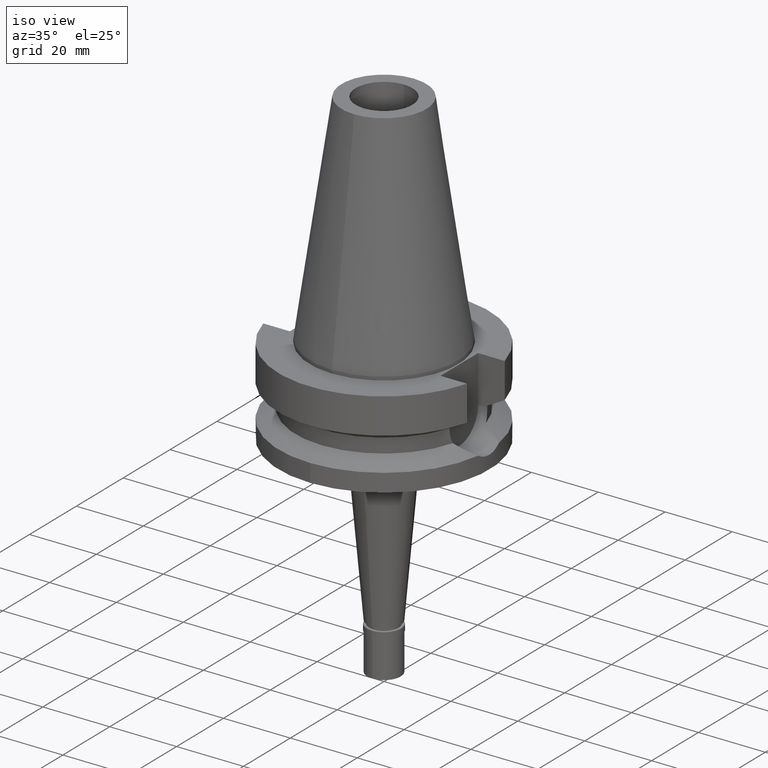
[diagram: clean part render]
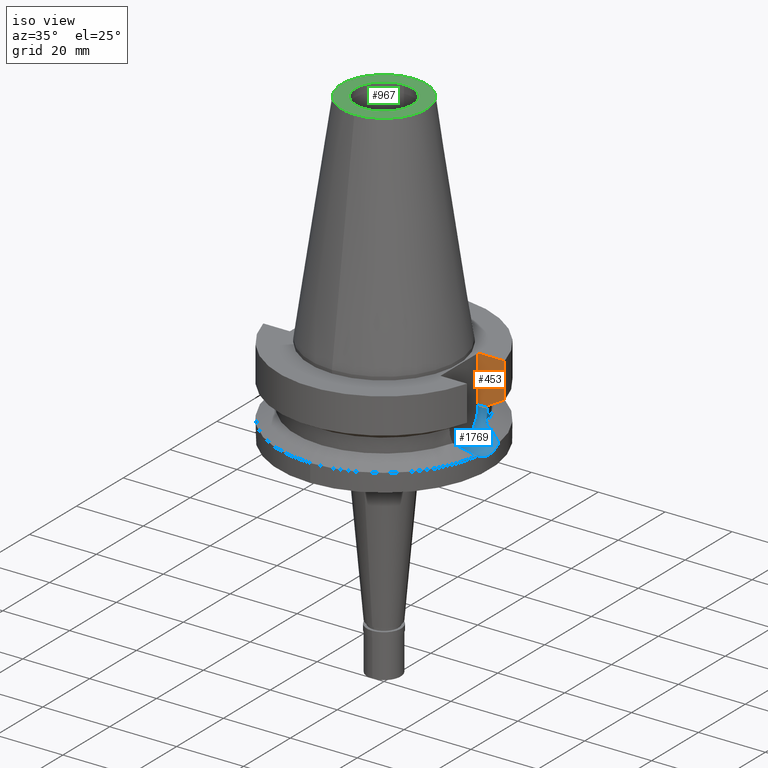
[diagram: same view with three faces highlighted in distinct colors, each labeled with its STEP entity id]
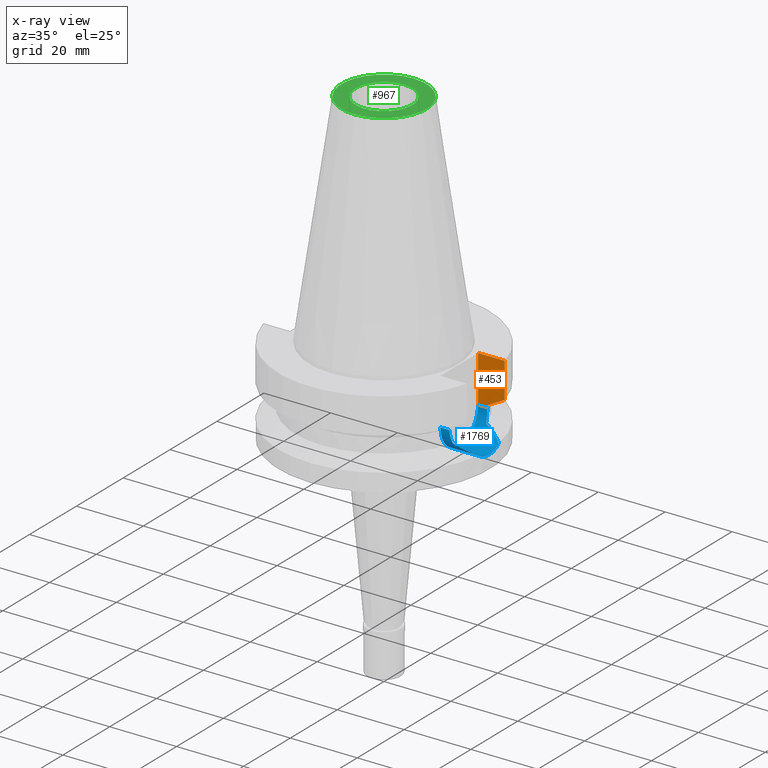
[diagram: x-ray of the same camera — body ghosted, the three highlighted faces saturated]
A machine part, iso view with three faces highlighted in distinct colors.
The next image is the same camera in x-ray (body ghosted, the three faces saturated) — at least one of them is partly hidden behind the body in this view.
Their STEP definitions:

[orange] entity #453 — the highlighted planar face has unit normal (0, 1, 0).
#15 = DIRECTION ( 'NONE',  ( 1.000000000000000000, 0.0000000000000000000, 0.0000000000000000000 ) ) ;
#109 = DIRECTION ( 'NONE',  ( 1.000000000000000000, -3.506251283225999947E-14, 0.0000000000000000000 ) ) ;
#113 = LINE ( 'NONE', #2695, #1739 ) ;
#171 = DIRECTION ( 'NONE',  ( 0.0000000000000000000, 0.0000000000000000000, -1.000000000000000000 ) ) ;
#190 = PLANE ( 'NONE',  #306 ) ;
#276 = CARTESIAN_POINT ( 'NONE',  ( 25.24772266958000344, 8.050000000000000711, -14.94999999999999929 ) ) ;
#306 = AXIS2_PLACEMENT_3D ( 'NONE', #2327, #1097, #15 ) ;
#356 = EDGE_CURVE ( 'NONE', #1653, #1566, #113, .T. ) ;
#453 = ADVANCED_FACE ( 'NONE', ( #1127 ), #190, .F. ) ;
#519 = VECTOR ( 'NONE', #171, 1000.000000000000000 ) ;
#551 = VERTEX_POINT ( 'NONE', #1804 ) ;
#552 = EDGE_CURVE ( 'NONE', #2700, #1653, #932, .T. ) ;
#781 = LINE ( 'NONE', #1440, #986 ) ;
#860 = CARTESIAN_POINT ( 'NONE',  ( 30.45402291391000205, 8.049999276944999949, -11.56551216506999857 ) ) ;
#932 = LINE ( 'NONE', #2753, #1122 ) ;
#986 = VECTOR ( 'NONE', #2408, 1000.000000000000114 ) ;
#1057 = DIRECTION ( 'NONE',  ( 2.938014706397083811E-06, -9.214686618963258152E-06, 0.9999999999532287465 ) ) ;
#1062 = ORIENTED_EDGE ( 'NONE', *, *, #2932, .F. ) ;
#1097 = DIRECTION ( 'NONE',  ( -0.0000000000000000000, 1.000000000000000000, 0.0000000000000000000 ) ) ;
#1122 = VECTOR ( 'NONE', #1577, 1000.000000000000000 ) ;
#1127 = FACE_OUTER_BOUND ( 'NONE', #1282, .T. ) ;
#1195 = EDGE_CURVE ( 'NONE', #551, #1566, #2629, .T. ) ;
#1209 = CARTESIAN_POINT ( 'NONE',  ( 25.24772413184999920, 8.049995413776999342, -14.45229204333999995 ) ) ;
#1222 = ORIENTED_EDGE ( 'NONE', *, *, #1195, .F. ) ;
#1232 = LINE ( 'NONE', #2631, #1383 ) ;
#1282 = EDGE_LOOP ( 'NONE', ( #1222, #1790, #1062, #2533, #1479, #2437 ) ) ;
#1329 = CARTESIAN_POINT ( 'NONE',  ( 25.24772413184999920, 8.049995413776999342, -14.45229204333999995 ) ) ;
#1383 = VECTOR ( 'NONE', #109, 1000.000000000000000 ) ;
#1440 = CARTESIAN_POINT ( 'NONE',  ( 30.45402291391000205, 8.049999276944999949, -11.56551216506999857 ) ) ;
#1479 = ORIENTED_EDGE ( 'NONE', *, *, #552, .T. ) ;
#1526 = CARTESIAN_POINT ( 'NONE',  ( 22.50000000000000000, 8.050000000000000711, -1.000000000000000000 ) ) ;
#1537 = EDGE_CURVE ( 'NONE', #551, #2564, #781, .T. ) ;
#1547 = CARTESIAN_POINT ( 'NONE',  ( 28.57292327179205316, 8.049998554832107800, -12.61549606603391105 ) ) ;
#1566 = VERTEX_POINT ( 'NONE', #1209 ) ;
#1577 = DIRECTION ( 'NONE',  ( 1.000000000000000000, -1.551559937893000172E-14, 0.0000000000000000000 ) ) ;
#1609 = CARTESIAN_POINT ( 'NONE',  ( 22.50000000000000000, 8.050000000000000711, -14.94999999999999929 ) ) ;
#1653 = VERTEX_POINT ( 'NONE', #276 ) ;
#1691 = CARTESIAN_POINT ( 'NONE',  ( 22.50000000000000000, 8.050000000000000711, -1.000000000000000000 ) ) ;
#1739 = VECTOR ( 'NONE', #1057, 1000.000000000000114 ) ;
#1790 = ORIENTED_EDGE ( 'NONE', *, *, #1537, .T. ) ;
#1802 = LINE ( 'NONE', #1526, #519 ) ;
#1804 = CARTESIAN_POINT ( 'NONE',  ( 30.45402291391000205, 8.049999276944999949, -11.56551216506999857 ) ) ;
#2327 = CARTESIAN_POINT ( 'NONE',  ( 22.50000000000000000, 8.050000000000000711, -14.94999999999999929 ) ) ;
#2378 = EDGE_CURVE ( 'NONE', #2820, #2700, #1802, .T. ) ;
#2408 = DIRECTION ( 'NONE',  ( -1.808965443440990702E-08, 6.843536210293961624E-08, 0.9999999999999974465 ) ) ;
#2437 = ORIENTED_EDGE ( 'NONE', *, *, #356, .T. ) ;
#2501 = CARTESIAN_POINT ( 'NONE',  ( 26.83754614074041456, 8.049990817397580045, -13.57774889237704130 ) ) ;
#2533 = ORIENTED_EDGE ( 'NONE', *, *, #2378, .T. ) ;
#2564 = VERTEX_POINT ( 'NONE', #2807 ) ;
#2629 = B_SPLINE_CURVE_WITH_KNOTS ( 'NONE', 3,
 ( #860, #1547, #2501, #1329 ),
 .UNSPECIFIED., .F., .F.,
 ( 4, 4 ),
 ( 0.0000000000000000000, 1.000000000000000000 ),
 .UNSPECIFIED. ) ;
#2631 = CARTESIAN_POINT ( 'NONE',  ( 22.50000000000000000, 8.050000000000000711, -1.000000000000000000 ) ) ;
#2695 = CARTESIAN_POINT ( 'NONE',  ( 25.24772266958000344, 8.050000000000000711, -14.94999999999999929 ) ) ;
#2700 = VERTEX_POINT ( 'NONE', #1609 ) ;
#2753 = CARTESIAN_POINT ( 'NONE',  ( 22.50000000000000000, 8.050000000000000711, -14.94999999999999929 ) ) ;
#2807 = CARTESIAN_POINT ( 'NONE',  ( 30.45402272279000044, 8.050000000000000711, -1.000000000000000000 ) ) ;
#2820 = VERTEX_POINT ( 'NONE', #1691 ) ;
#2932 = EDGE_CURVE ( 'NONE', #2820, #2564, #1232, .T. ) ;

[blue] entity #1769 — the highlighted cylindrical surface (edge-blend (fillet) strip) has radius 8.05 mm, axis along (1, 0, 0).
#1 = CARTESIAN_POINT ( 'NONE',  ( 31.43708070623769402, 1.991764995276301464, -22.75084497589715227 ) ) ;
#18 = CARTESIAN_POINT ( 'NONE',  ( 31.41961713560081293, 2.247512791031588630, -22.67996187727418445 ) ) ;
#32 = CARTESIAN_POINT ( 'NONE',  ( 31.41697434343423367, 2.283991918620003059, -22.66919955626233829 ) ) ;
#35 = CARTESIAN_POINT ( 'NONE',  ( 25.25396284446427231, -8.030907492774099765, -15.59360398733923248 ) ) ;
#69 = VERTEX_POINT ( 'NONE', #1663 ) ;
#154 = CARTESIAN_POINT ( 'NONE',  ( 31.40782758523585372, -2.406601728313475075, -22.63190292606204324 ) ) ;
#168 = CARTESIAN_POINT ( 'NONE',  ( 28.37499727210918721, -6.100946831235466661, -20.20441925685868512 ) ) ;
#185 = CARTESIAN_POINT ( 'NONE',  ( 30.86092685240122080, -4.726847431179353798, -21.47256585195634671 ) ) ;
#242 = EDGE_CURVE ( 'NONE', #69, #1545, #496, .T. ) ;
#272 = DIRECTION ( 'NONE',  ( -1.000000000000000000, -1.551559937893000172E-14, 0.0000000000000000000 ) ) ;
#276 = CARTESIAN_POINT ( 'NONE',  ( 25.24772266958000344, 8.050000000000000711, -14.94999999999999929 ) ) ;
#313 = CARTESIAN_POINT ( 'NONE',  ( 25.32840589093493122, 7.792665650289850809, -16.96921537928767165 ) ) ;
#320 = CARTESIAN_POINT ( 'NONE',  ( 31.17899877608999759, 4.485536235554000051, -21.63449434733000132 ) ) ;
#328 = CARTESIAN_POINT ( 'NONE',  ( 25.53175183775000079, 7.097862220092999941, -18.74774300138999905 ) ) ;
#344 = ORIENTED_EDGE ( 'NONE', *, *, #2080, .F. ) ;
#357 = CARTESIAN_POINT ( 'NONE',  ( 25.33288843118665312, 7.778112047386424699, -17.02510900864709598 ) ) ;
#363 = CARTESIAN_POINT ( 'NONE',  ( 25.53175183775000079, 7.097862220092999941, -18.74774300138999905 ) ) ;
#365 = VERTEX_POINT ( 'NONE', #617 ) ;
#368 = CARTESIAN_POINT ( 'NONE',  ( 31.50000030214000901, -0.7652149793535831801, -23.00000000000001066 ) ) ;
#371 = CYLINDRICAL_SURFACE ( 'NONE', #1799, 8.050000000000000711 ) ;
#411 = CARTESIAN_POINT ( 'NONE',  ( 31.23205536474370447, -4.116739457217387432, -21.88197025603023604 ) ) ;
#422 = CARTESIAN_POINT ( 'NONE',  ( 27.36021350787058992, -6.509965234031566794, -19.68537179173337748 ) ) ;
#468 = CARTESIAN_POINT ( 'NONE',  ( 31.28511246932954393, 3.747939092731539024, -22.12944857116227482 ) ) ;
#480 = CARTESIAN_POINT ( 'NONE',  ( 31.47113396423499410, 1.356627086445900465, -22.88731413899968103 ) ) ;
#492 = B_SPLINE_CURVE_WITH_KNOTS ( 'NONE', 3,
 ( #2775, #920, #2346, #480, #1641, #2056, #1, #696, #18, #32, #1595, #1179, #2552, #468, #2591 ),
 .UNSPECIFIED., .F., .F.,
 ( 4, 2, 2, 1, 1, 1, 2, 2, 4 ),
 ( 0.0000000000000000000, 0.2499999999999987232, 0.3749999999999980571, 0.4374999999999976685, 0.4687499999999972800, 0.4843749999999970579, 0.4921874999999972800, 0.4999999999999974465, 1.000000000000000000 ),
 .UNSPECIFIED. ) ;
#496 = B_SPLINE_CURVE_WITH_KNOTS ( 'NONE', 3,
 ( #1783, #185, #1753, #1092, #2702, #1305, #2230, #2017, #168, #864, #2947, #879, #2733, #2504, #422, #2148, #537, #2121 ),
 .UNSPECIFIED., .F., .F.,
 ( 4, 2, 2, 2, 2, 1, 1, 2, 2, 4 ),
 ( 0.0000000000000000000, 0.2499999999999968359, 0.3749999999999952260, 0.4999999999999936717, 0.6249999999999921174, 0.6874999999999918954, 0.7187499999999912292, 0.7343749999999908962, 0.7499999999999905631, 1.000000000000000000 ),
 .UNSPECIFIED. ) ;
#515 = CARTESIAN_POINT ( 'NONE',  ( 25.31648647172267630, -7.831300037042746354, -16.81378020971410336 ) ) ;
#537 = CARTESIAN_POINT ( 'NONE',  ( 26.19471785708979894, -6.915624221760626966, -19.08834008838357477 ) ) ;
#552 = EDGE_CURVE ( 'NONE', #2700, #1653, #932, .T. ) ;
#553 = CARTESIAN_POINT ( 'NONE',  ( 25.34384339545047737, 7.742469616379023201, -17.15619314850085431 ) ) ;
#582 = CARTESIAN_POINT ( 'NONE',  ( 31.41024033735767418, -2.374799497788442348, -22.64174557504526319 ) ) ;
#596 = CARTESIAN_POINT ( 'NONE',  ( 26.07037693278902424, 6.949803411181306956, -19.02446025838356647 ) ) ;
#614 = DIRECTION ( 'NONE',  ( 0.0000000000000000000, 0.0000000000000000000, -1.000000000000000000 ) ) ;
#617 = CARTESIAN_POINT ( 'NONE',  ( 31.17899877608999759, 4.485536235554000051, -21.63449434733000132 ) ) ;
#631 = CARTESIAN_POINT ( 'NONE',  ( 31.50000030214000191, 8.342955494189999248E-14, -23.00000138097999880 ) ) ;
#684 = CARTESIAN_POINT ( 'NONE',  ( 25.53175183775000079, 7.097862220092999941, -18.74774300138999905 ) ) ;
#686 = EDGE_LOOP ( 'NONE', ( #2147, #1511, #2141, #2827, #344, #1845, #2297, #2563, #1020 ) ) ;
#696 = CARTESIAN_POINT ( 'NONE',  ( 31.42563565429491135, 2.162334764995339498, -22.70443684360698811 ) ) ;
#715 = VECTOR ( 'NONE', #272, 1000.000000000000000 ) ;
#716 = CARTESIAN_POINT ( 'NONE',  ( 25.31950905643225269, -7.821515286679913359, -16.85442525727320273 ) ) ;
#757 = CARTESIAN_POINT ( 'NONE',  ( 27.52907743079975589, 6.446503288826595401, -19.77132000358237462 ) ) ;
#786 = CARTESIAN_POINT ( 'NONE',  ( 27.50606393660781990, 6.455279954192641334, -19.75956144972829520 ) ) ;
#797 = CARTESIAN_POINT ( 'NONE',  ( 25.37569567372544910, 7.637836187999782922, -17.49781209657168191 ) ) ;
#805 = CARTESIAN_POINT ( 'NONE',  ( 31.38993428958174903, -2.631303512542792156, -22.55875788733084875 ) ) ;
#853 = CARTESIAN_POINT ( 'NONE',  ( 22.50000000000000000, -8.050000000000000711, -14.94999999999999929 ) ) ;
#864 = CARTESIAN_POINT ( 'NONE',  ( 27.99471042802032983, -6.261471513020793189, -20.01000085046658228 ) ) ;
#870 = CARTESIAN_POINT ( 'NONE',  ( 31.35450628997280731, -3.025525277933811985, -22.41217090960126512 ) ) ;
#879 = CARTESIAN_POINT ( 'NONE',  ( 27.56606101210972781, -6.432230505110647201, -19.79073109492793492 ) ) ;
#882 = CARTESIAN_POINT ( 'NONE',  ( 22.50000000000000000, 0.0000000000000000000, -14.94999999999999929 ) ) ;
#892 = B_SPLINE_CURVE_WITH_KNOTS ( 'NONE', 3,
 ( #2726, #411, #1528, #1055, #870, #2876, #805, #1711, #154, #582, #1990, #1499, #2920, #368, #631 ),
 .UNSPECIFIED., .F., .F.,
 ( 4, 2, 2, 1, 1, 1, 2, 2, 4 ),
 ( 0.0000000000000000000, 0.2499999999999926725, 0.3749999999999884537, 0.4374999999999862887, 0.4687499999999850675, 0.4843749999999845124, 0.4921874999999845124, 0.4999999999999845124, 1.000000000000000000 ),
 .UNSPECIFIED. ) ;
#909 = VERTEX_POINT ( 'NONE', #684 ) ;
#920 = CARTESIAN_POINT ( 'NONE',  ( 31.50000030214000901, 0.3826056554101830987, -23.00000000000001066 ) ) ;
#932 = LINE ( 'NONE', #2753, #1122 ) ;
#935 = CARTESIAN_POINT ( 'NONE',  ( 25.24772266958000344, -8.050000000000000711, -14.94999999999999929 ) ) ;
#950 = CARTESIAN_POINT ( 'NONE',  ( 31.50000030214000191, 8.342955494189999248E-14, -23.00000138097999880 ) ) ;
#963 = CARTESIAN_POINT ( 'NONE',  ( 25.31202572170774800, -7.845729406580115750, -16.75279821057748464 ) ) ;
#987 = CARTESIAN_POINT ( 'NONE',  ( 22.50000000000000000, 0.0000000000000000000, -14.94999999999999929 ) ) ;
#1014 = DIRECTION ( 'NONE',  ( 0.0000000000000000000, 0.0000000000000000000, -1.000000000000000000 ) ) ;
#1015 = CARTESIAN_POINT ( 'NONE',  ( 25.53175183775000079, -7.097862220092999941, -18.74774300138999905 ) ) ;
#1020 = ORIENTED_EDGE ( 'NONE', *, *, #2097, .T. ) ;
#1028 = CARTESIAN_POINT ( 'NONE',  ( 25.24772266958000344, 8.049999999999997158, -15.58981081119148193 ) ) ;
#1038 = CIRCLE ( 'NONE', #2701, 8.050000000000000711 ) ;
#1055 = CARTESIAN_POINT ( 'NONE',  ( 31.33672057677264178, -3.204251252587263288, -22.33748834319396792 ) ) ;
#1065 = EDGE_CURVE ( 'NONE', #69, #1414, #892, .T. ) ;
#1067 = DIRECTION ( 'NONE',  ( -1.000000000000000000, 0.0000000000000000000, 0.0000000000000000000 ) ) ;
#1092 = CARTESIAN_POINT ( 'NONE',  ( 29.92469731240471020, -5.317462073779302578, -20.99542885212645515 ) ) ;
#1122 = VECTOR ( 'NONE', #1577, 1000.000000000000000 ) ;
#1140 = CARTESIAN_POINT ( 'NONE',  ( 25.36814761471070767, -7.663830712965410186, -17.48803584493431984 ) ) ;
#1165 = B_SPLINE_CURVE_WITH_KNOTS ( 'NONE', 3,
 ( #328, #1934, #2177, #2865, #797, #1687, #553, #357, #313, #2394, #1504, #1700, #1028, #2654 ),
 .UNSPECIFIED., .F., .F.,
 ( 4, 2, 2, 1, 1, 2, 2, 4 ),
 ( 0.0000000000000000000, 0.2500000000000011657, 0.3750000000000028311, 0.4375000000000037748, 0.4687500000000027756, 0.4843750000000024425, 0.5000000000000019984, 1.000000000000000000 ),
 .UNSPECIFIED. ) ;
#1179 = CARTESIAN_POINT ( 'NONE',  ( 31.41418495480496276, 2.322053851931152213, -22.65783286939395325 ) ) ;
#1199 = CARTESIAN_POINT ( 'NONE',  ( 25.53175183775000079, -7.097862220092999941, -18.74774300138999905 ) ) ;
#1203 = CARTESIAN_POINT ( 'NONE',  ( 27.72909069492666845, 6.368935428460407167, -19.87352897229699167 ) ) ;
#1258 = CARTESIAN_POINT ( 'NONE',  ( 25.24772266958000344, -8.050000000000000711, -14.94999999999999929 ) ) ;
#1276 = CARTESIAN_POINT ( 'NONE',  ( 26.57788799908902178, 6.789703925417603259, -19.28477394101565423 ) ) ;
#1305 = CARTESIAN_POINT ( 'NONE',  ( 29.29787638095617552, -5.660589042173123531, -20.67570061258619063 ) ) ;
#1384 = CARTESIAN_POINT ( 'NONE',  ( 25.32118155423751560, -7.816096717212906775, -16.87652453452377443 ) ) ;
#1392 = LINE ( 'NONE', #935, #715 ) ;
#1410 = CARTESIAN_POINT ( 'NONE',  ( 25.27268336911707891, -7.971811480182248388, -16.08115959834941222 ) ) ;
#1414 = VERTEX_POINT ( 'NONE', #950 ) ;
#1424 = EDGE_CURVE ( 'NONE', #1782, #1545, #2525, .T. ) ;
#1499 = CARTESIAN_POINT ( 'NONE',  ( 31.41250754197807993, -2.344647989658719567, -22.65099259441074508 ) ) ;
#1504 = CARTESIAN_POINT ( 'NONE',  ( 25.32415423298265722, 7.806459850231466824, -16.91522840168126152 ) ) ;
#1511 = ORIENTED_EDGE ( 'NONE', *, *, #1684, .T. ) ;
#1528 = CARTESIAN_POINT ( 'NONE',  ( 31.27811788849607666, -3.746649693726940455, -22.08610233353132912 ) ) ;
#1545 = VERTEX_POINT ( 'NONE', #1015 ) ;
#1555 = CARTESIAN_POINT ( 'NONE',  ( 27.17338429604023631, 6.578986936333137692, -19.58949578873789221 ) ) ;
#1577 = DIRECTION ( 'NONE',  ( 1.000000000000000000, -1.551559937893000172E-14, 0.0000000000000000000 ) ) ;
#1595 = CARTESIAN_POINT ( 'NONE',  ( 31.41519838709827539, 2.308305299124623122, -22.66196392106155599 ) ) ;
#1609 = CARTESIAN_POINT ( 'NONE',  ( 22.50000000000000000, 8.050000000000000711, -14.94999999999999929 ) ) ;
#1635 = CARTESIAN_POINT ( 'NONE',  ( 25.24772266958000344, -8.050000000000000711, -14.94999999999999929 ) ) ;
#1641 = CARTESIAN_POINT ( 'NONE',  ( 31.46211323363969115, 1.552195910349955632, -22.85147168905218962 ) ) ;
#1653 = VERTEX_POINT ( 'NONE', #276 ) ;
#1663 = CARTESIAN_POINT ( 'NONE',  ( 31.17899877608999759, -4.485536235554000051, -21.63449434733000132 ) ) ;
#1666 = CARTESIAN_POINT ( 'NONE',  ( 27.47040263872500887, 6.468848196884700918, -19.74133976322999473 ) ) ;
#1684 = EDGE_CURVE ( 'NONE', #909, #1653, #1165, .T. ) ;
#1687 = CARTESIAN_POINT ( 'NONE',  ( 25.35408314255054663, 7.708964442631086378, -17.26963666352914117 ) ) ;
#1700 = CARTESIAN_POINT ( 'NONE',  ( 25.27267991477270215, 7.973333693868347005, -16.24500092433180498 ) ) ;
#1711 = CARTESIAN_POINT ( 'NONE',  ( 31.40205439731330017, -2.481109188367201401, -22.60833575748784341 ) ) ;
#1718 = DIRECTION ( 'NONE',  ( 1.000000000000000000, 0.0000000000000000000, 0.0000000000000000000 ) ) ;
#1753 = CARTESIAN_POINT ( 'NONE',  ( 30.50757115698613831, -4.966401490634723359, -21.29255841623271905 ) ) ;
#1769 = ADVANCED_FACE ( 'NONE', ( #2430 ), #371, .F. ) ;
#1782 = VERTEX_POINT ( 'NONE', #1258 ) ;
#1783 = CARTESIAN_POINT ( 'NONE',  ( 31.17899877608999759, -4.485536235554000051, -21.63449434733000132 ) ) ;
#1799 = AXIS2_PLACEMENT_3D ( 'NONE', #987, #1718, #1014 ) ;
#1845 = ORIENTED_EDGE ( 'NONE', *, *, #1424, .T. ) ;
#1867 = CARTESIAN_POINT ( 'NONE',  ( 25.30212919435223995, -7.877667573970332349, -16.61042047323947202 ) ) ;
#1926 = CARTESIAN_POINT ( 'NONE',  ( 28.33598069284113663, 6.118865374169335070, -20.18378028383055067 ) ) ;
#1934 = CARTESIAN_POINT ( 'NONE',  ( 25.48480653792046624, 7.266729367422243513, -18.43213561436577308 ) ) ;
#1990 = CARTESIAN_POINT ( 'NONE',  ( 31.41183517848922335, -2.353627141601180028, -22.64825057556864252 ) ) ;
#2017 = CARTESIAN_POINT ( 'NONE',  ( 28.61715253155249883, -5.991983453913923618, -20.32814229185106214 ) ) ;
#2056 = CARTESIAN_POINT ( 'NONE',  ( 31.44587591856813802, 1.845286407608153656, -22.78628960817215088 ) ) ;
#2080 = EDGE_CURVE ( 'NONE', #1782, #2382, #1392, .T. ) ;
#2097 = EDGE_CURVE ( 'NONE', #1414, #365, #492, .T. ) ;
#2111 = CARTESIAN_POINT ( 'NONE',  ( 25.24772266958000344, -8.050000000000000711, -15.26991324108737302 ) ) ;
#2121 = CARTESIAN_POINT ( 'NONE',  ( 25.53175183775000079, -7.097862220092999941, -18.74774300138999905 ) ) ;
#2126 = CARTESIAN_POINT ( 'NONE',  ( 27.64268996898243103, 6.402877931771499220, -19.82937222061136495 ) ) ;
#2140 = CARTESIAN_POINT ( 'NONE',  ( 29.60898665998330515, 5.537310361553017479, -20.83457359421966260 ) ) ;
#2141 = ORIENTED_EDGE ( 'NONE', *, *, #552, .F. ) ;
#2147 = ORIENTED_EDGE ( 'NONE', *, *, #2948, .T. ) ;
#2148 = CARTESIAN_POINT ( 'NONE',  ( 26.79339989418530621, -6.719838285451953830, -19.39519324303487480 ) ) ;
#2177 = CARTESIAN_POINT ( 'NONE',  ( 25.44390410195637742, 7.408324269918076688, -18.11690676764972352 ) ) ;
#2185 = CARTESIAN_POINT ( 'NONE',  ( 28.07165455292683731, 6.232028418511025514, -20.04862121734959857 ) ) ;
#2230 = CARTESIAN_POINT ( 'NONE',  ( 29.07863705188619363, -5.771779660784049248, -20.56380988996443548 ) ) ;
#2235 = B_SPLINE_CURVE_WITH_KNOTS ( 'NONE', 3,
 ( #320, #2417, #2140, #1926, #2185, #1203, #2126, #2836, #757, #2858, #786, #1666, #2617, #1555, #1276, #596, #363 ),
 .UNSPECIFIED., .F., .F.,
 ( 4, 2, 2, 1, 2, 2, 1, 1, 2, 4 ),
 ( 0.0000000000000000000, 0.5000000000000337508, 0.6250000000000428546, 0.6562500000000455191, 0.6640625000000459632, 0.6679687500000455191, 0.6718750000000450751, 0.6875000000000428546, 0.7500000000000339728, 1.000000000000000000 ),
 .UNSPECIFIED. ) ;
#2297 = ORIENTED_EDGE ( 'NONE', *, *, #242, .F. ) ;
#2332 = EDGE_CURVE ( 'NONE', #2700, #2382, #1038, .T. ) ;
#2346 = CARTESIAN_POINT ( 'NONE',  ( 31.49278371766374462, 0.7711800344137828001, -22.97267739136340481 ) ) ;
#2366 = CARTESIAN_POINT ( 'NONE',  ( 25.29452398121201284, -7.902090651792915033, -16.48828405102948125 ) ) ;
#2382 = VERTEX_POINT ( 'NONE', #853 ) ;
#2394 = CARTESIAN_POINT ( 'NONE',  ( 25.32546474064105979, 7.802209548897429237, -16.93201787082077203 ) ) ;
#2417 = CARTESIAN_POINT ( 'NONE',  ( 30.47179228992344235, 5.022071622751537845, -21.27445979634407891 ) ) ;
#2430 = FACE_OUTER_BOUND ( 'NONE', #686, .T. ) ;
#2504 = CARTESIAN_POINT ( 'NONE',  ( 27.39574079807524143, -6.496701382466126162, -19.70355813172771775 ) ) ;
#2525 = B_SPLINE_CURVE_WITH_KNOTS ( 'NONE', 3,
 ( #1635, #2111, #35, #1410, #2780, #2366, #1867, #963, #515, #716, #1384, #1140, #2573, #1199 ),
 .UNSPECIFIED., .F., .F.,
 ( 4, 2, 2, 1, 1, 2, 2, 4 ),
 ( 0.0000000000000000000, 0.2500000000000145439, 0.3750000000000218159, 0.4375000000000255351, 0.4687500000000285882, 0.4843750000000303091, 0.5000000000000319744, 1.000000000000000000 ),
 .UNSPECIFIED. ) ;
#2552 = CARTESIAN_POINT ( 'NONE',  ( 31.36324664010788155, 3.008168613722364437, -22.45010890233392686 ) ) ;
#2563 = ORIENTED_EDGE ( 'NONE', *, *, #1065, .T. ) ;
#2573 = CARTESIAN_POINT ( 'NONE',  ( 25.43786330456363487, -7.435589081430040714, -18.11654211998952135 ) ) ;
#2591 = CARTESIAN_POINT ( 'NONE',  ( 31.17899877608999759, 4.485536235554000051, -21.63449434733000132 ) ) ;
#2617 = CARTESIAN_POINT ( 'NONE',  ( 27.31982758678279666, 6.525643748734936800, -19.66438800432079503 ) ) ;
#2654 = CARTESIAN_POINT ( 'NONE',  ( 25.24772266958000344, 8.050000000000000711, -14.94999999999999929 ) ) ;
#2700 = VERTEX_POINT ( 'NONE', #1609 ) ;
#2701 = AXIS2_PLACEMENT_3D ( 'NONE', #882, #1067, #614 ) ;
#2702 = CARTESIAN_POINT ( 'NONE',  ( 29.72160323592895992, -5.433097738376416075, -20.89186592900423634 ) ) ;
#2726 = CARTESIAN_POINT ( 'NONE',  ( 31.17899877608999759, -4.485536235554000051, -21.63449434733000132 ) ) ;
#2733 = CARTESIAN_POINT ( 'NONE',  ( 27.46408070419827041, -6.470963690626903464, -19.73853774018160223 ) ) ;
#2753 = CARTESIAN_POINT ( 'NONE',  ( 22.50000000000000000, 8.050000000000000711, -14.94999999999999929 ) ) ;
#2775 = CARTESIAN_POINT ( 'NONE',  ( 31.50000030214000191, 8.342955494189999248E-14, -23.00000138097999880 ) ) ;
#2780 = CARTESIAN_POINT ( 'NONE',  ( 25.28048358772242210, -7.947040743794914874, -16.24400980664077920 ) ) ;
#2827 = ORIENTED_EDGE ( 'NONE', *, *, #2332, .T. ) ;
#2836 = CARTESIAN_POINT ( 'NONE',  ( 27.55533954123292517, 6.436452998108603829, -19.78473864053906794 ) ) ;
#2858 = CARTESIAN_POINT ( 'NONE',  ( 27.52031326336410544, 6.449849043286963735, -19.76684211330660190 ) ) ;
#2865 = CARTESIAN_POINT ( 'NONE',  ( 25.39161474380841099, 7.584925632688388042, -17.65165132602217213 ) ) ;
#2876 = CARTESIAN_POINT ( 'NONE',  ( 31.37856208543510306, -2.761959679512536070, -22.51193779408598061 ) ) ;
#2920 = CARTESIAN_POINT ( 'NONE',  ( 31.47113671115875988, -1.554941092257487112, -22.89006709281524010 ) ) ;
#2947 = CARTESIAN_POINT ( 'NONE',  ( 27.80030432420757691, -6.341002506259939331, -19.91058318379466030 ) ) ;
#2948 = EDGE_CURVE ( 'NONE', #365, #909, #2235, .T. ) ;

[green] entity #967 — the highlighted planar face has unit normal (0, 0, -1).
#126 = CIRCLE ( 'NONE', #2601, 8.500000000000000000 ) ;
#226 = DIRECTION ( 'NONE',  ( 0.0000000000000000000, 0.0000000000000000000, -1.000000000000000000 ) ) ;
#282 = VERTEX_POINT ( 'NONE', #2424 ) ;
#286 = CARTESIAN_POINT ( 'NONE',  ( 0.0000000000000000000, 2.025565805790000122E-14, 65.40000000000000568 ) ) ;
#321 = AXIS2_PLACEMENT_3D ( 'NONE', #2128, #2681, #1234 ) ;
#393 = EDGE_CURVE ( 'NONE', #2011, #282, #455, .T. ) ;
#418 = ORIENTED_EDGE ( 'NONE', *, *, #2189, .F. ) ;
#455 = CIRCLE ( 'NONE', #1212, 12.68766899429999917 ) ;
#497 = CARTESIAN_POINT ( 'NONE',  ( 0.0000000000000000000, 2.118455265505000055E-14, 65.40000000000000568 ) ) ;
#512 = PLANE ( 'NONE',  #896 ) ;
#535 = FACE_OUTER_BOUND ( 'NONE', #605, .T. ) ;
#605 = EDGE_LOOP ( 'NONE', ( #1100, #2374 ) ) ;
#711 = DIRECTION ( 'NONE',  ( 0.0000000000000000000, -1.000000000000000000, 0.0000000000000000000 ) ) ;
#885 = VERTEX_POINT ( 'NONE', #1829 ) ;
#896 = AXIS2_PLACEMENT_3D ( 'NONE', #286, #2118, #1207 ) ;
#906 = CARTESIAN_POINT ( 'NONE',  ( 0.0000000000000000000, -8.500000000000000000, 65.40000000000000568 ) ) ;
#910 = CIRCLE ( 'NONE', #321, 8.500000000000000000 ) ;
#967 = ADVANCED_FACE ( 'NONE', ( #535, #1220 ), #512, .F. ) ;
#989 = AXIS2_PLACEMENT_3D ( 'NONE', #2299, #226, #2789 ) ;
#1100 = ORIENTED_EDGE ( 'NONE', *, *, #393, .F. ) ;
#1121 = VERTEX_POINT ( 'NONE', #906 ) ;
#1207 = DIRECTION ( 'NONE',  ( 0.0000000000000000000, -1.000000000000000000, 0.0000000000000000000 ) ) ;
#1212 = AXIS2_PLACEMENT_3D ( 'NONE', #2224, #1946, #2878 ) ;
#1220 = FACE_BOUND ( 'NONE', #1491, .T. ) ;
#1234 = DIRECTION ( 'NONE',  ( 0.0000000000000000000, 1.000000000000000000, 0.0000000000000000000 ) ) ;
#1491 = EDGE_LOOP ( 'NONE', ( #418, #2912 ) ) ;
#1655 = DIRECTION ( 'NONE',  ( 0.0000000000000000000, 0.0000000000000000000, 1.000000000000000000 ) ) ;
#1792 = CARTESIAN_POINT ( 'NONE',  ( 0.0000000000000000000, 12.68766899429999917, 65.40000000000000568 ) ) ;
#1829 = CARTESIAN_POINT ( 'NONE',  ( 0.0000000000000000000, 8.500000000000000000, 65.40000000000000568 ) ) ;
#1946 = DIRECTION ( 'NONE',  ( 0.0000000000000000000, 0.0000000000000000000, -1.000000000000000000 ) ) ;
#2011 = VERTEX_POINT ( 'NONE', #1792 ) ;
#2033 = EDGE_CURVE ( 'NONE', #1121, #885, #126, .T. ) ;
#2066 = EDGE_CURVE ( 'NONE', #282, #2011, #2648, .T. ) ;
#2118 = DIRECTION ( 'NONE',  ( 0.0000000000000000000, 0.0000000000000000000, -1.000000000000000000 ) ) ;
#2128 = CARTESIAN_POINT ( 'NONE',  ( 0.0000000000000000000, 2.118455265505000055E-14, 65.40000000000000568 ) ) ;
#2189 = EDGE_CURVE ( 'NONE', #885, #1121, #910, .T. ) ;
#2224 = CARTESIAN_POINT ( 'NONE',  ( 0.0000000000000000000, 1.625106302469000024E-14, 65.40000000000000568 ) ) ;
#2299 = CARTESIAN_POINT ( 'NONE',  ( 0.0000000000000000000, 1.625106302469000024E-14, 65.40000000000000568 ) ) ;
#2374 = ORIENTED_EDGE ( 'NONE', *, *, #2066, .F. ) ;
#2424 = CARTESIAN_POINT ( 'NONE',  ( 0.0000000000000000000, -12.68766899429999917, 65.40000000000000568 ) ) ;
#2601 = AXIS2_PLACEMENT_3D ( 'NONE', #497, #1655, #711 ) ;
#2648 = CIRCLE ( 'NONE', #989, 12.68766899429999917 ) ;
#2681 = DIRECTION ( 'NONE',  ( 0.0000000000000000000, 0.0000000000000000000, 1.000000000000000000 ) ) ;
#2789 = DIRECTION ( 'NONE',  ( 0.0000000000000000000, -1.000000000000000000, 0.0000000000000000000 ) ) ;
#2878 = DIRECTION ( 'NONE',  ( 0.0000000000000000000, 1.000000000000000000, 0.0000000000000000000 ) ) ;
#2912 = ORIENTED_EDGE ( 'NONE', *, *, #2033, .F. ) ;